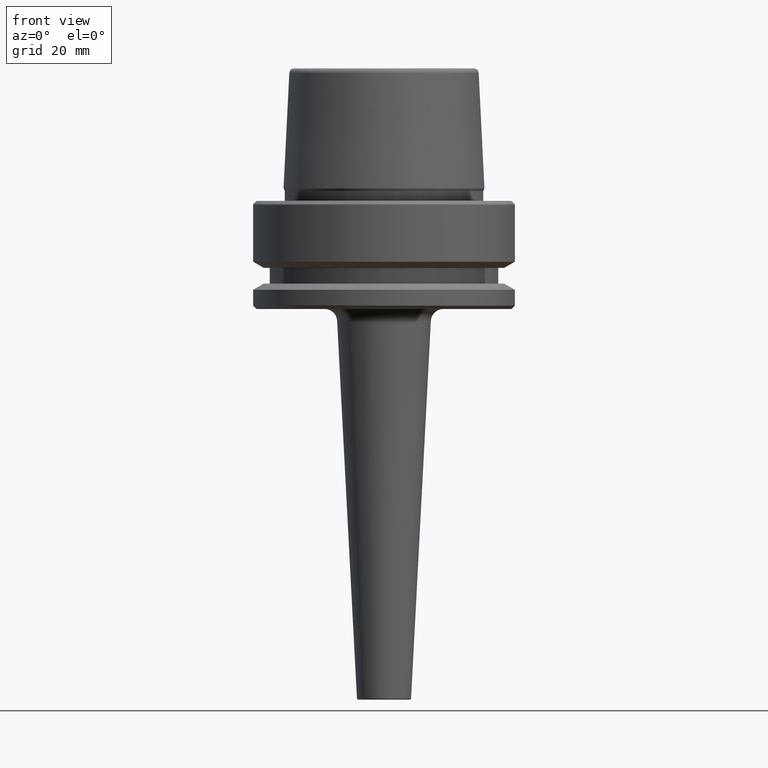
[diagram: clean part render]
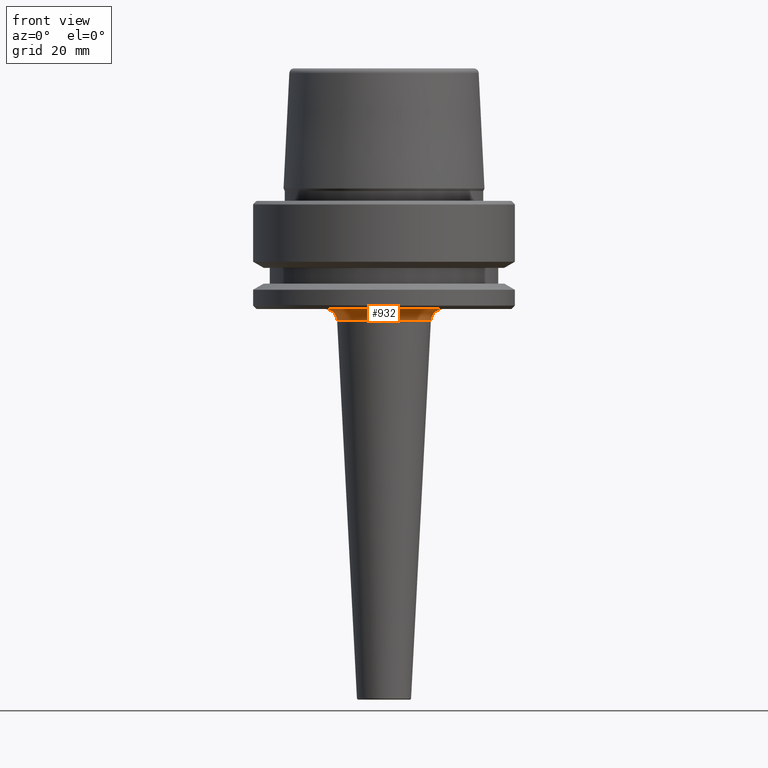
[diagram: same view with one face highlighted and labeled with its STEP entity id]
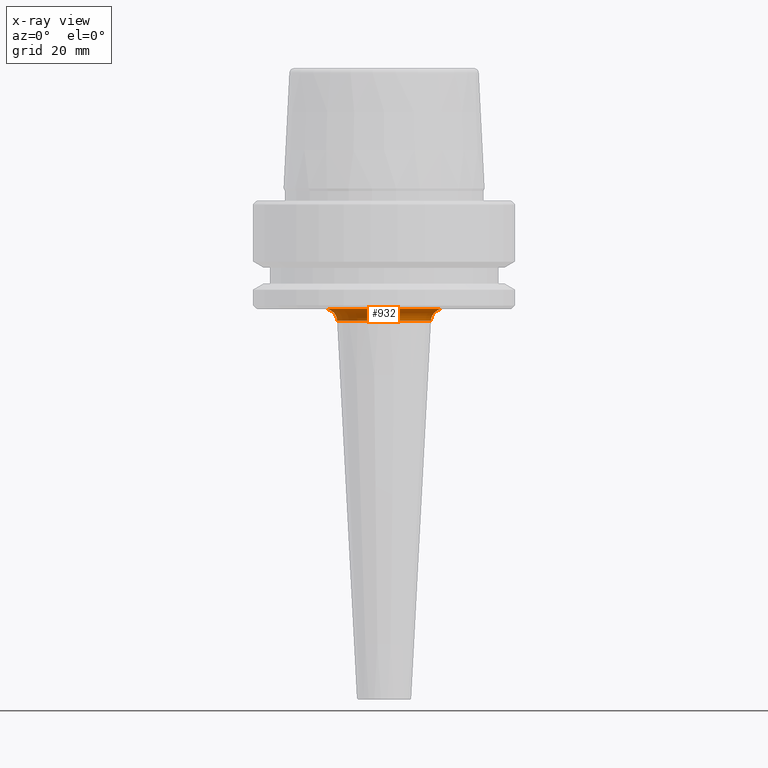
[diagram: x-ray of the same camera — body ghosted, the highlighted face saturated]
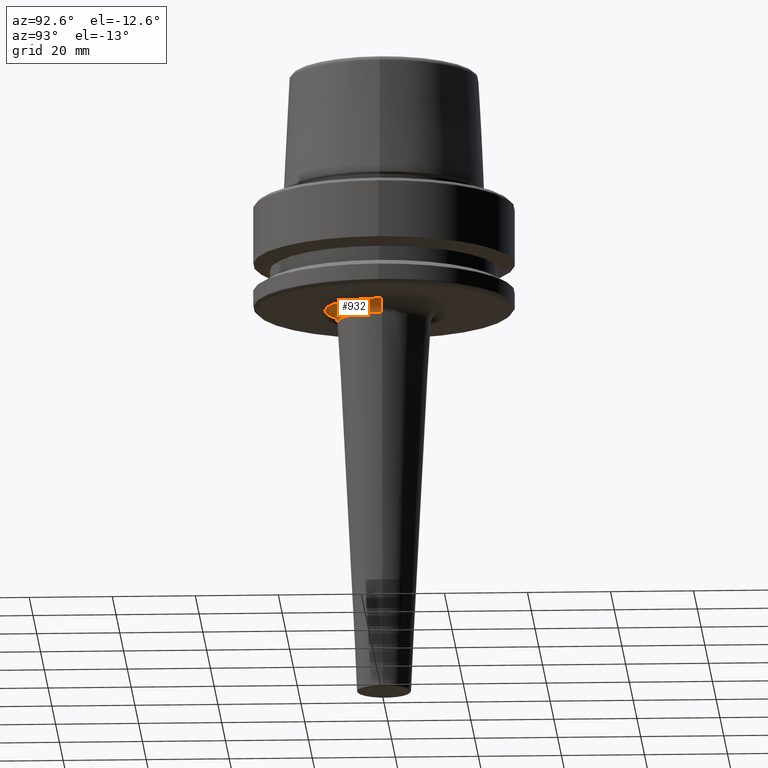
[diagram: same view with one face highlighted and labeled with its STEP entity id]
A machine part, front view. The second image highlights one B-rep face of the part: STEP entity #932.
The next image is the same camera in x-ray: the body ghosted, the highlighted face saturated — about 0% of this face is hidden behind the body in this view.
A second angle (auxiliary view) of the same face is appended — the face is thin or edge-on in the first view.
In plain terms, the highlighted toroidal blend (fillet) surface has major radius 14.2732 mm and minor (blend) radius 3 mm.
Its self-contained STEP definition (entity closure, byte-faithful):
#33 = EDGE_CURVE ( 'NONE', #368, #398, #1085, .T. ) ;
#49 = CARTESIAN_POINT ( 'NONE',  ( -14.27322495275052100, 1.747965925189605900E-015, -28.99999999999999600 ) ) ;
#62 = DIRECTION ( 'NONE',  ( 0.0000000000000000000, 0.0000000000000000000, -1.000000000000000000 ) ) ;
#85 = CARTESIAN_POINT ( 'NONE',  ( 0.0000000000000000000, 0.0000000000000000000, -26.00000000000000700 ) ) ;
#107 = ORIENTED_EDGE ( 'NONE', *, *, #33, .T. ) ;
#126 = EDGE_CURVE ( 'NONE', #671, #419, #290, .T. ) ;
#146 = DIRECTION ( 'NONE',  ( 0.0000000000000000000, -1.000000000000000000, 0.0000000000000000000 ) ) ;
#173 = ORIENTED_EDGE ( 'NONE', *, *, #194, .F. ) ;
#194 = EDGE_CURVE ( 'NONE', #419, #398, #223, .T. ) ;
#223 = CIRCLE ( 'NONE', #1210, 11.27733634848680000 ) ;
#290 = CIRCLE ( 'NONE', #661, 3.000000000000002700 ) ;
#307 = AXIS2_PLACEMENT_3D ( 'NONE', #49, #1114, #737 ) ;
#368 = VERTEX_POINT ( 'NONE', #834 ) ;
#374 = ORIENTED_EDGE ( 'NONE', *, *, #126, .F. ) ;
#377 = AXIS2_PLACEMENT_3D ( 'NONE', #470, #583, #477 ) ;
#398 = VERTEX_POINT ( 'NONE', #848 ) ;
#419 = VERTEX_POINT ( 'NONE', #667 ) ;
#454 = EDGE_LOOP ( 'NONE', ( #668, #107, #173, #374 ) ) ;
#470 = CARTESIAN_POINT ( 'NONE',  ( 0.0000000000000000000, 0.0000000000000000000, -28.99999999999999600 ) ) ;
#477 = DIRECTION ( 'NONE',  ( 1.000000000000000000, 0.0000000000000000000, 0.0000000000000000000 ) ) ;
#510 = TOROIDAL_SURFACE ( 'NONE', #377, 14.27322495275052100, 3.000000000000000000 ) ;
#543 = DIRECTION ( 'NONE',  ( 1.000000000000000000, 0.0000000000000000000, 0.0000000000000000000 ) ) ;
#546 = CARTESIAN_POINT ( 'NONE',  ( 14.27322495275052100, 0.0000000000000000000, -26.00000000000000400 ) ) ;
#583 = DIRECTION ( 'NONE',  ( -0.0000000000000000000, -0.0000000000000000000, 1.000000000000000000 ) ) ;
#638 = AXIS2_PLACEMENT_3D ( 'NONE', #85, #1043, #1234 ) ;
#649 = CARTESIAN_POINT ( 'NONE',  ( 0.0000000000000000000, 0.0000000000000000000, -28.84299213127116700 ) ) ;
#661 = AXIS2_PLACEMENT_3D ( 'NONE', #1106, #146, #62 ) ;
#667 = CARTESIAN_POINT ( 'NONE',  ( 11.27733634848680000, 0.0000000000000000000, -28.84299213127116700 ) ) ;
#668 = ORIENTED_EDGE ( 'NONE', *, *, #867, .F. ) ;
#671 = VERTEX_POINT ( 'NONE', #546 ) ;
#737 = DIRECTION ( 'NONE',  ( -1.000000000000000000, 1.224646799147353500E-016, 0.0000000000000000000 ) ) ;
#834 = CARTESIAN_POINT ( 'NONE',  ( -14.27322495275052100, 1.747965925189605900E-015, -26.00000000000000400 ) ) ;
#848 = CARTESIAN_POINT ( 'NONE',  ( -11.27733634848680000, 1.381075386208246000E-015, -28.84299213127116700 ) ) ;
#867 = EDGE_CURVE ( 'NONE', #368, #671, #875, .T. ) ;
#875 = CIRCLE ( 'NONE', #638, 14.27322495275052100 ) ;
#919 = FACE_OUTER_BOUND ( 'NONE', #454, .T. ) ;
#932 = ADVANCED_FACE ( 'NONE', ( #919 ), #510, .F. ) ;
#1020 = DIRECTION ( 'NONE',  ( 0.0000000000000000000, 0.0000000000000000000, -1.000000000000000000 ) ) ;
#1043 = DIRECTION ( 'NONE',  ( -0.0000000000000000000, -0.0000000000000000000, 1.000000000000000000 ) ) ;
#1085 = CIRCLE ( 'NONE', #307, 2.999999999999999100 ) ;
#1106 = CARTESIAN_POINT ( 'NONE',  ( 14.27322495275052100, 0.0000000000000000000, -28.99999999999999600 ) ) ;
#1114 = DIRECTION ( 'NONE',  ( 1.224646799147353200E-016, 1.000000000000000000, 0.0000000000000000000 ) ) ;
#1210 = AXIS2_PLACEMENT_3D ( 'NONE', #649, #1020, #543 ) ;
#1234 = DIRECTION ( 'NONE',  ( 1.000000000000000000, 0.0000000000000000000, 0.0000000000000000000 ) ) ;